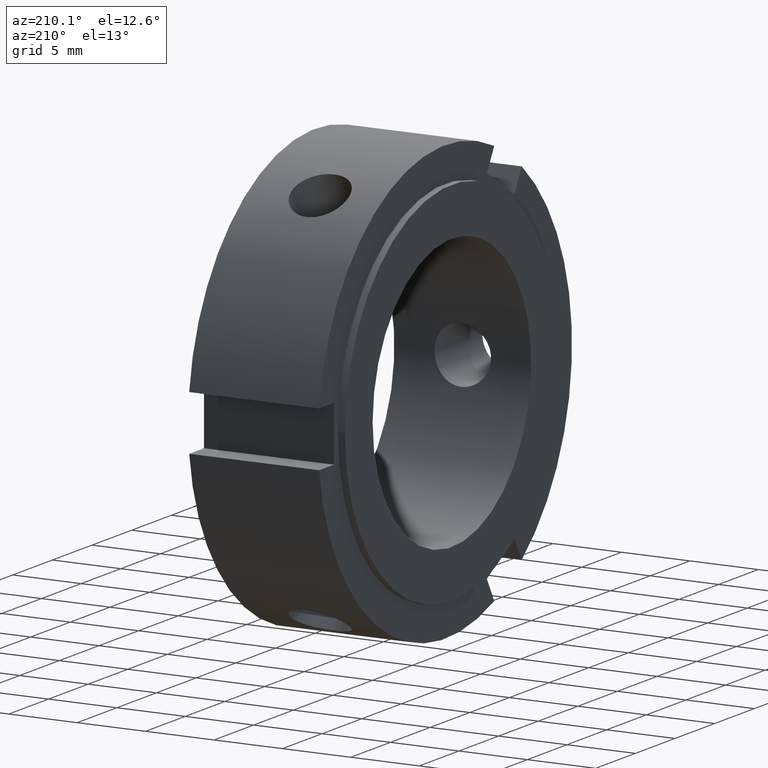
[diagram: clean part render]
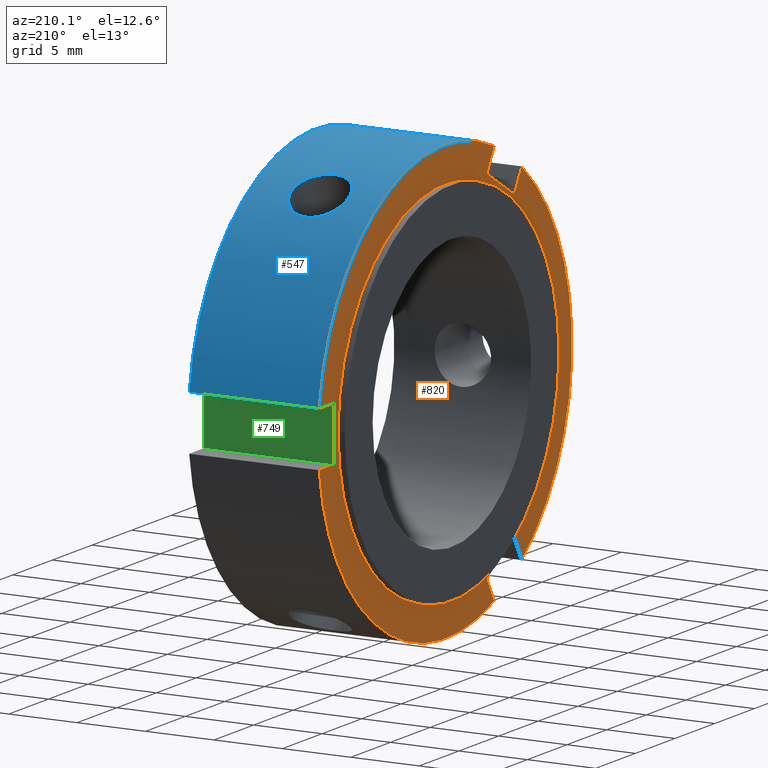
[diagram: same view with three faces highlighted in distinct colors, each labeled with its STEP entity id]
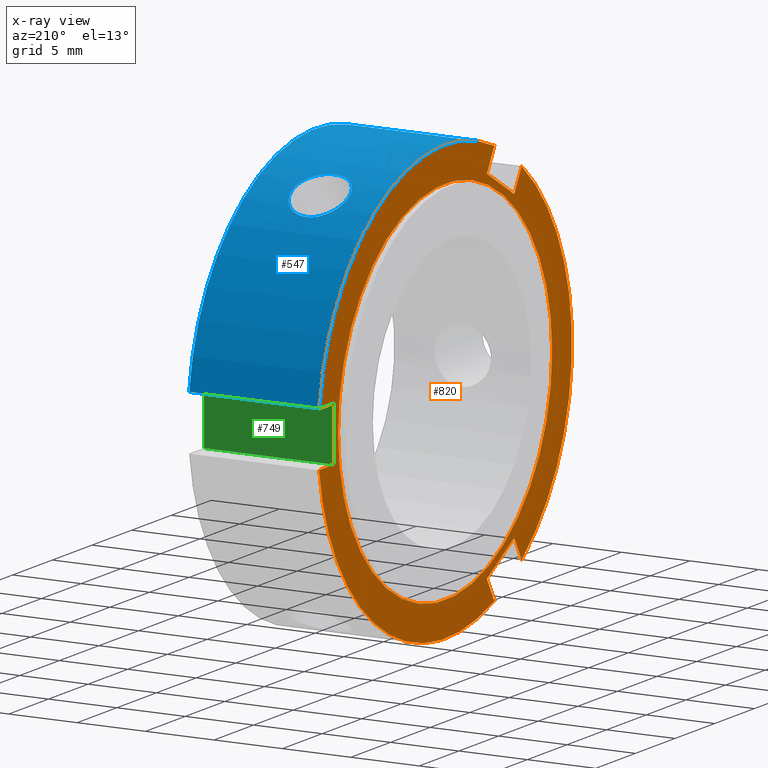
[diagram: x-ray of the same camera — body ghosted, the three highlighted faces saturated]
A machine part, auxiliary view with three faces highlighted in distinct colors.
The next image is the same camera in x-ray (body ghosted, the three faces saturated) — at least one of them is partly hidden behind the body in this view.
Their STEP definitions:

[orange] entity #820 — the highlighted planar face has unit normal (-1, 0, 0).
#73=CARTESIAN_POINT('',(0.499999999999997,-8.732050807568882,-11.124355652982134));
#74=VERTEX_POINT('',#73);
#75=CARTESIAN_POINT('',(0.499999999999998,-9.669304740762655,-12.747727084867515));
#76=VERTEX_POINT('',#75);
#77=CARTESIAN_POINT('',(0.499999999999997,-8.732050807568886,-11.124355652982135));
#78=DIRECTION('',(0.0,-0.500000000000000,-0.866025403784439));
#79=VECTOR('',#78,1.874507866387546);
#80=LINE('',#77,#79);
#81=EDGE_CURVE('',#74,#76,#80,.T.);
#113=CARTESIAN_POINT('',(0.499999999999998,-6.205203125624903,-14.747727084867517));
#114=VERTEX_POINT('',#113);
#115=CARTESIAN_POINT('',(0.499999999999997,-5.267949192431130,-13.124355652982139));
#116=VERTEX_POINT('',#115);
#117=CARTESIAN_POINT('',(0.499999999999997,-6.205203125624904,-14.747727084867517));
#118=DIRECTION('',(0.0,0.500000000000002,0.866025403784438));
#119=VECTOR('',#118,1.874507866387540);
#120=LINE('',#117,#119);
#121=EDGE_CURVE('',#114,#116,#120,.T.);
#153=CARTESIAN_POINT('',(0.499999999999997,-5.267949192431134,-13.124355652982139));
#154=DIRECTION('',(0.0,-0.866025403784438,0.500000000000000));
#155=VECTOR('',#154,4.000000000000002);
#156=LINE('',#153,#155);
#157=EDGE_CURVE('',#116,#74,#156,.T.);
#263=CARTESIAN_POINT('',(0.499999999999997,-5.267949192431118,13.124355652982141));
#264=VERTEX_POINT('',#263);
#265=CARTESIAN_POINT('',(0.499999999999998,-6.205203125624892,14.747727084867519));
#266=VERTEX_POINT('',#265);
#267=CARTESIAN_POINT('',(0.499999999999997,-5.267949192431119,13.124355652982141));
#268=DIRECTION('',(0.0,-0.499999999999999,0.866025403784439));
#269=VECTOR('',#268,1.874507866387543);
#270=LINE('',#267,#269);
#271=EDGE_CURVE('',#264,#266,#270,.T.);
#303=CARTESIAN_POINT('',(0.499999999999998,-9.669304740762645,12.747727084867522));
#304=VERTEX_POINT('',#303);
#305=CARTESIAN_POINT('',(0.499999999999997,-8.732050807568875,11.124355652982143));
#306=VERTEX_POINT('',#305);
#307=CARTESIAN_POINT('',(0.499999999999998,-9.669304740762648,12.747727084867524));
#308=DIRECTION('',(0.0,0.500000000000000,-0.866025403784438));
#309=VECTOR('',#308,1.874507866387545);
#310=LINE('',#307,#309);
#311=EDGE_CURVE('',#304,#306,#310,.T.);
#343=CARTESIAN_POINT('',(0.499999999999998,-8.732050807568875,11.124355652982144));
#344=DIRECTION('',(0.0,0.866025403784439,0.500000000000000));
#345=VECTOR('',#344,3.999999999999999);
#346=LINE('',#343,#345);
#347=EDGE_CURVE('',#306,#264,#346,.T.);
#527=CARTESIAN_POINT('',(0.499999999999998,15.874507866387543,2.000000000000000));
#528=VERTEX_POINT('',#527);
#535=CARTESIAN_POINT('',(0.499999999999998,0.0,0.0));
#536=DIRECTION('',(1.0,0.0,0.0));
#537=DIRECTION('',(0.0,1.0,0.0));
#538=AXIS2_PLACEMENT_3D('',#535,#536,#537);
#539=CIRCLE('',#538,15.999999999999998);
#540=EDGE_CURVE('',#528,#266,#539,.T.);
#554=CARTESIAN_POINT('',(0.499999999999998,15.874507866387543,-2.000000000000000));
#555=VERTEX_POINT('',#554);
#556=CARTESIAN_POINT('',(0.499999999999998,0.0,0.0));
#557=DIRECTION('',(1.0,0.0,0.0));
#558=DIRECTION('',(0.0,1.0,0.0));
#559=AXIS2_PLACEMENT_3D('',#556,#557,#558);
#560=CIRCLE('',#559,15.999999999999998);
#561=EDGE_CURVE('',#114,#555,#560,.T.);
#584=CARTESIAN_POINT('',(0.499999999999998,0.0,0.0));
#585=DIRECTION('',(1.0,0.0,0.0));
#586=DIRECTION('',(0.0,1.0,0.0));
#587=AXIS2_PLACEMENT_3D('',#584,#585,#586);
#588=CIRCLE('',#587,15.999999999999998);
#589=EDGE_CURVE('',#304,#76,#588,.T.);
#690=CARTESIAN_POINT('',(0.499999999999997,13.999999999999996,-2.000000000000000));
#691=VERTEX_POINT('',#690);
#692=CARTESIAN_POINT('',(0.499999999999997,13.999999999999996,-2.000000000000000));
#693=DIRECTION('',(0.0,1.0,0.0));
#694=VECTOR('',#693,1.874507866387546);
#695=LINE('',#692,#694);
#696=EDGE_CURVE('',#691,#555,#695,.T.);
#714=CARTESIAN_POINT('',(0.499999999999997,13.999999999999996,2.000000000000000));
#715=VERTEX_POINT('',#714);
#716=CARTESIAN_POINT('',(0.499999999999997,15.874507866387543,2.000000000000000));
#717=DIRECTION('',(0.0,-1.0,0.0));
#718=VECTOR('',#717,1.874507866387546);
#719=LINE('',#716,#718);
#720=EDGE_CURVE('',#528,#715,#719,.T.);
#738=CARTESIAN_POINT('',(0.499999999999997,13.999999999999996,2.000000000000000));
#739=DIRECTION('',(0.0,0.0,-1.0));
#740=VECTOR('',#739,4.0);
#741=LINE('',#738,#740);
#742=EDGE_CURVE('',#715,#691,#741,.T.);
#783=CARTESIAN_POINT('',(0.499999999999996,13.499999999999998,0.0));
#784=VERTEX_POINT('',#783);
#785=CARTESIAN_POINT('',(0.499999999999996,0.0,0.0));
#786=DIRECTION('',(1.0,0.0,0.0));
#787=DIRECTION('',(0.0,1.0,0.0));
#788=AXIS2_PLACEMENT_3D('',#785,#786,#787);
#789=CIRCLE('',#788,13.499999999999998);
#790=EDGE_CURVE('',#784,#784,#789,.T.);
#798=CARTESIAN_POINT('',(0.499999999999997,14.749999999999998,0.0));
#799=DIRECTION('',(-1.0,0.0,0.0));
#800=DIRECTION('',(0.0,0.0,1.0));
#801=AXIS2_PLACEMENT_3D('',#798,#799,#800);
#802=PLANE('',#801);
#803=ORIENTED_EDGE('',*,*,#81,.T.);
#804=ORIENTED_EDGE('',*,*,#589,.F.);
#805=ORIENTED_EDGE('',*,*,#311,.T.);
#806=ORIENTED_EDGE('',*,*,#347,.T.);
#807=ORIENTED_EDGE('',*,*,#271,.T.);
#808=ORIENTED_EDGE('',*,*,#540,.F.);
#809=ORIENTED_EDGE('',*,*,#720,.T.);
#810=ORIENTED_EDGE('',*,*,#742,.T.);
#811=ORIENTED_EDGE('',*,*,#696,.T.);
#812=ORIENTED_EDGE('',*,*,#561,.F.);
#813=ORIENTED_EDGE('',*,*,#121,.T.);
#814=ORIENTED_EDGE('',*,*,#157,.T.);
#815=EDGE_LOOP('',(#803,#804,#805,#806,#807,#808,#809,#810,#811,#812,#813,#814));
#816=FACE_OUTER_BOUND('',#815,.T.);
#817=ORIENTED_EDGE('',*,*,#790,.T.);
#818=EDGE_LOOP('',(#817));
#819=FACE_BOUND('',#818,.T.);
#820=ADVANCED_FACE('',(#816,#819),#802,.T.);

[blue] entity #547 — the highlighted cylindrical surface (partial cylindrical patch) has radius 16 mm, axis along (1, 0, 0).
#175=CARTESIAN_POINT('',(4.999999999999996,9.723035983750497,12.706792327676288));
#176=VERTEX_POINT('',#175);
#177=CARTESIAN_POINT('',(4.999999999999996,9.723035983750497,12.706792327676288));
#178=CARTESIAN_POINT('',(5.259850414627227,9.723035983750497,12.706792327676288));
#179=CARTESIAN_POINT('',(5.536820394372651,9.681531970775319,12.738886667123603));
#180=CARTESIAN_POINT('',(6.045999172821700,9.511454008091706,12.866372347676734));
#181=CARTESIAN_POINT('',(6.278233054693931,9.382706686094187,12.961431935368822));
#182=CARTESIAN_POINT('',(6.644944629392624,9.081944904852859,13.173920398681311));
#183=CARTESIAN_POINT('',(6.803974245744746,8.889766192107301,13.305526386887866));
#184=CARTESIAN_POINT('',(7.015009926134721,8.461410479588519,13.581955237607923));
#185=CARTESIAN_POINT('',(7.066999999999996,8.225034913255103,13.726482492806117));
#186=CARTESIAN_POINT('',(7.066999999999996,7.774965086744910,13.986330428295908));
#187=CARTESIAN_POINT('',(7.015009926134721,7.531613029037328,14.118774045975480));
#188=CARTESIAN_POINT('',(6.803974245744746,7.078040765715432,14.351526549512903));
#189=CARTESIAN_POINT('',(6.644944629392625,6.867977280265622,14.452155202713875));
#190=CARTESIAN_POINT('',(6.278233054693933,6.533575982405226,14.606378314100077));
#191=CARTESIAN_POINT('',(6.045999172821702,6.386878303591841,14.670346971773096));
#192=CARTESIAN_POINT('',(5.536820394372653,6.191433484272276,14.753895967804445));
#193=CARTESIAN_POINT('',(5.259850414627227,6.142886964505630,14.773792327676285));
#194=CARTESIAN_POINT('',(4.740149585372764,6.142886964505630,14.773792327676285));
#195=CARTESIAN_POINT('',(4.463179605627337,6.191433484272276,14.753895967804445));
#196=CARTESIAN_POINT('',(3.954000827178288,6.386878303591841,14.670346971773096));
#197=CARTESIAN_POINT('',(3.721766945306058,6.533575982405226,14.606378314100077));
#198=CARTESIAN_POINT('',(3.355055370607366,6.867977280265622,14.452155202713875));
#199=CARTESIAN_POINT('',(3.196025754255245,7.078040765715432,14.351526549512903));
#200=CARTESIAN_POINT('',(2.984990073865270,7.531613029037328,14.118774045975480));
#201=CARTESIAN_POINT('',(2.932999999999995,7.774965086744910,13.986330428295908));
#202=CARTESIAN_POINT('',(2.932999999999995,8.225034913255103,13.726482492806117));
#203=CARTESIAN_POINT('',(2.984990073865271,8.461410479588519,13.581955237607923));
#204=CARTESIAN_POINT('',(3.196025754255247,8.889766192107302,13.305526386887866));
#205=CARTESIAN_POINT('',(3.355055370607367,9.081944904852859,13.173920398681311));
#206=CARTESIAN_POINT('',(3.721766945306060,9.382706686094187,12.961431935368822));
#207=CARTESIAN_POINT('',(3.954000827178290,9.511454008091706,12.866372347676734));
#208=CARTESIAN_POINT('',(4.463179605627340,9.681531970775319,12.738886667123602));
#209=CARTESIAN_POINT('',(4.740149585372764,9.723035983750497,12.706792327676288));
#210=CARTESIAN_POINT('',(4.999999999999996,9.723035983750497,12.706792327676288));
#211=B_SPLINE_CURVE_WITH_KNOTS('',3,(#177,#178,#179,#180,#181,#182,#183,#184,#185,#186,#187,#188,#189,#190,#191,#192,#193,#194,#195,#196,#197,#198,#199,#200,#201,#202,#203,#204,#205,#206,#207,#208,#209,#210),.UNSPECIFIED.,.T.,.U.,(4,2,2,2,2,2,2,2,2,2,2,2,2,2,2,2,4),(0.0,0.077955124388169,0.155910248776339,0.233864629423276,0.311819010070212,0.389773390717149,0.467727771364086,0.545682895752255,0.623638020140425,0.701593144528594,0.779548268916764,0.857502649563700,0.935457030210637,1.013411410857574,1.091365791504511,1.169320915892680,1.247276040280850),.UNSPECIFIED.);
#212=EDGE_CURVE('',#176,#176,#211,.T.);
#265=CARTESIAN_POINT('',(0.499999999999998,-6.205203125624892,14.747727084867519));
#266=VERTEX_POINT('',#265);
#281=CARTESIAN_POINT('',(9.999999999999996,-6.205203125624892,14.747727084867519));
#282=VERTEX_POINT('',#281);
#289=CARTESIAN_POINT('',(0.499999999999998,-6.205203125624889,14.747727084867520));
#290=DIRECTION('',(1.0,0.0,0.0));
#291=VECTOR('',#290,9.499999999999996);
#292=LINE('',#289,#291);
#293=EDGE_CURVE('',#266,#282,#292,.T.);
#481=CARTESIAN_POINT('',(9.999999999999996,15.874507866387543,1.999999999999999));
#482=VERTEX_POINT('',#481);
#489=CARTESIAN_POINT('',(9.999999999999996,0.0,0.0));
#490=DIRECTION('',(1.0,0.0,0.0));
#491=DIRECTION('',(0.0,1.0,0.0));
#492=AXIS2_PLACEMENT_3D('',#489,#490,#491);
#493=CIRCLE('',#492,15.999999999999998);
#494=EDGE_CURVE('',#482,#282,#493,.T.);
#520=CARTESIAN_POINT('',(5.249999999999996,0.0,0.0));
#521=DIRECTION('',(1.0,0.0,0.0));
#522=DIRECTION('',(0.0,1.0,0.0));
#523=AXIS2_PLACEMENT_3D('',#520,#521,#522);
#524=CYLINDRICAL_SURFACE('',#523,15.999999999999998);
#525=ORIENTED_EDGE('',*,*,#293,.T.);
#526=ORIENTED_EDGE('',*,*,#494,.F.);
#527=CARTESIAN_POINT('',(0.499999999999998,15.874507866387543,2.000000000000000));
#528=VERTEX_POINT('',#527);
#529=CARTESIAN_POINT('',(9.999999999999995,15.874507866387543,2.000000000000000));
#530=DIRECTION('',(-1.0,0.0,0.0));
#531=VECTOR('',#530,9.499999999999996);
#532=LINE('',#529,#531);
#533=EDGE_CURVE('',#482,#528,#532,.T.);
#534=ORIENTED_EDGE('',*,*,#533,.T.);
#535=CARTESIAN_POINT('',(0.499999999999998,0.0,0.0));
#536=DIRECTION('',(1.0,0.0,0.0));
#537=DIRECTION('',(0.0,1.0,0.0));
#538=AXIS2_PLACEMENT_3D('',#535,#536,#537);
#539=CIRCLE('',#538,15.999999999999998);
#540=EDGE_CURVE('',#528,#266,#539,.T.);
#541=ORIENTED_EDGE('',*,*,#540,.T.);
#542=EDGE_LOOP('',(#525,#526,#534,#541));
#543=FACE_OUTER_BOUND('',#542,.T.);
#544=ORIENTED_EDGE('',*,*,#212,.T.);
#545=EDGE_LOOP('',(#544));
#546=FACE_BOUND('',#545,.T.);
#547=ADVANCED_FACE('',(#543,#546),#524,.T.);

[green] entity #749 — the highlighted planar face has unit normal (0, -1, 0).
#465=CARTESIAN_POINT('',(9.999999999999996,13.999999999999996,-2.000000000000000));
#466=VERTEX_POINT('',#465);
#473=CARTESIAN_POINT('',(9.999999999999996,13.999999999999996,2.000000000000000));
#474=VERTEX_POINT('',#473);
#475=CARTESIAN_POINT('',(9.999999999999996,13.999999999999995,-2.0));
#476=DIRECTION('',(0.0,0.0,1.0));
#477=VECTOR('',#476,4.0);
#478=LINE('',#475,#477);
#479=EDGE_CURVE('',#466,#474,#478,.T.);
#690=CARTESIAN_POINT('',(0.499999999999997,13.999999999999996,-2.000000000000000));
#691=VERTEX_POINT('',#690);
#698=CARTESIAN_POINT('',(9.999999999999996,13.999999999999996,-2.000000000000000));
#699=DIRECTION('',(-1.0,0.0,0.0));
#700=VECTOR('',#699,9.499999999999998);
#701=LINE('',#698,#700);
#702=EDGE_CURVE('',#466,#691,#701,.T.);
#714=CARTESIAN_POINT('',(0.499999999999997,13.999999999999996,2.000000000000000));
#715=VERTEX_POINT('',#714);
#724=CARTESIAN_POINT('',(9.999999999999996,13.999999999999996,2.000000000000000));
#725=DIRECTION('',(-1.0,0.0,0.0));
#726=VECTOR('',#725,9.499999999999998);
#727=LINE('',#724,#726);
#728=EDGE_CURVE('',#474,#715,#727,.T.);
#733=CARTESIAN_POINT('',(9.999999999999996,13.999999999999996,2.000000000000000));
#734=DIRECTION('',(0.0,-1.0,0.0));
#735=DIRECTION('',(0.0,0.0,-1.0));
#736=AXIS2_PLACEMENT_3D('',#733,#734,#735);
#737=PLANE('',#736);
#738=CARTESIAN_POINT('',(0.499999999999997,13.999999999999996,2.000000000000000));
#739=DIRECTION('',(0.0,0.0,-1.0));
#740=VECTOR('',#739,4.0);
#741=LINE('',#738,#740);
#742=EDGE_CURVE('',#715,#691,#741,.T.);
#743=ORIENTED_EDGE('',*,*,#742,.F.);
#744=ORIENTED_EDGE('',*,*,#728,.F.);
#745=ORIENTED_EDGE('',*,*,#479,.F.);
#746=ORIENTED_EDGE('',*,*,#702,.T.);
#747=EDGE_LOOP('',(#743,#744,#745,#746));
#748=FACE_OUTER_BOUND('',#747,.T.);
#749=ADVANCED_FACE('',(#748),#737,.F.);